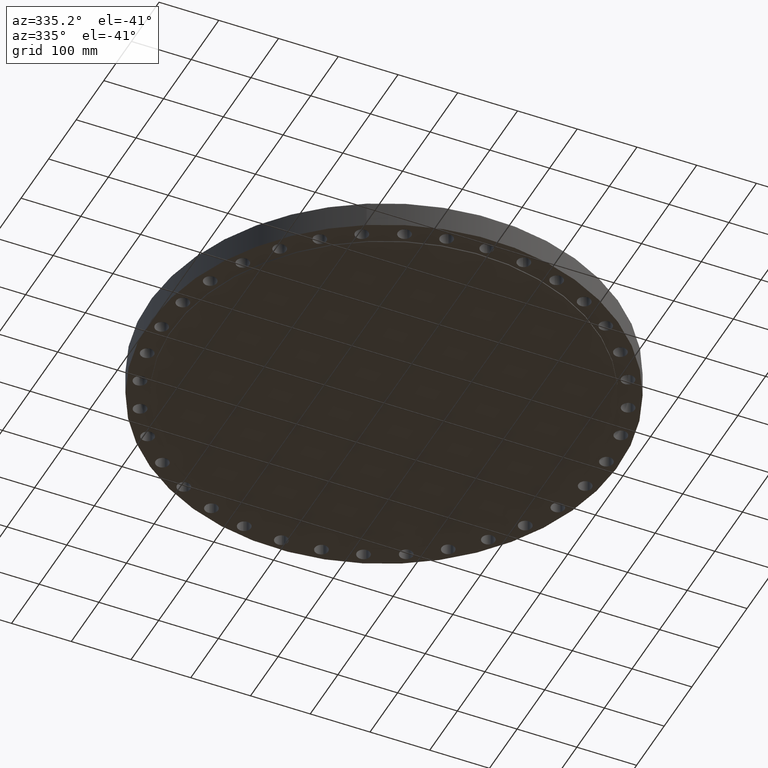
[diagram: clean part render]
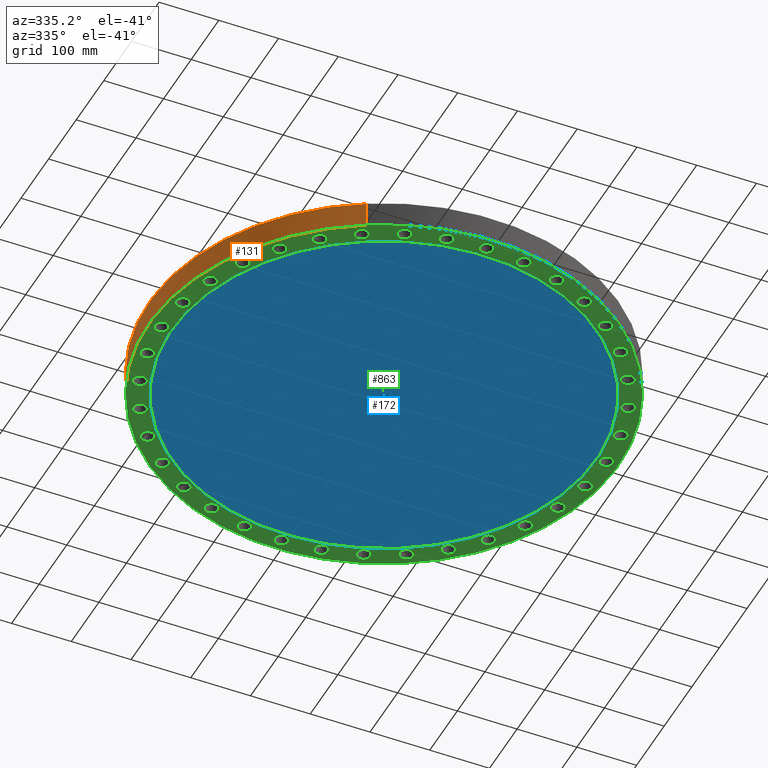
[diagram: same view with three faces highlighted in distinct colors, each labeled with its STEP entity id]
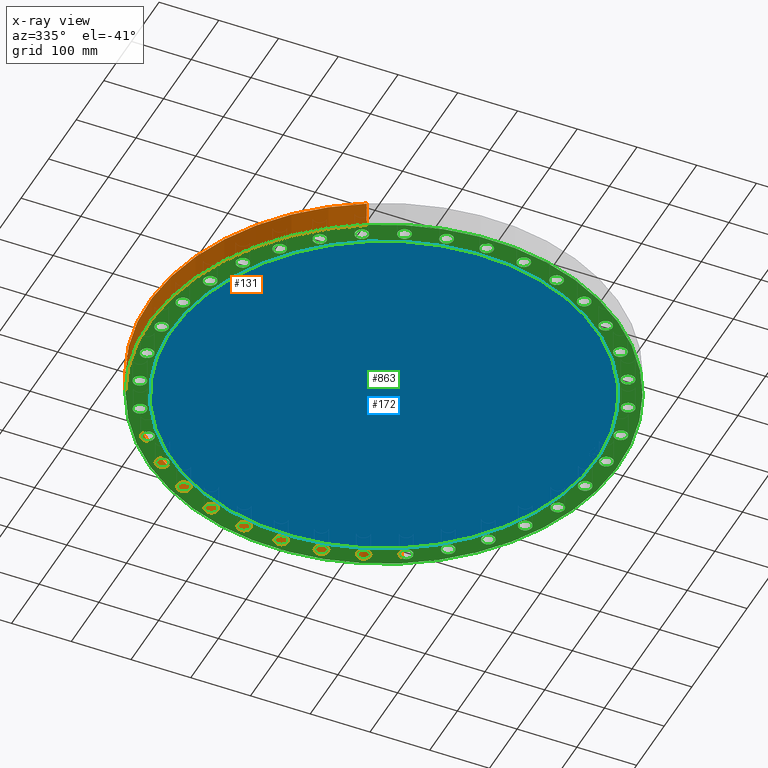
[diagram: x-ray of the same camera — body ghosted, the three highlighted faces saturated]
A machine part, auxiliary view with three faces highlighted in distinct colors.
The next image is the same camera in x-ray (body ghosted, the three faces saturated) — at least one of them is partly hidden behind the body in this view.
Their STEP definitions:

[orange] entity #131 — the highlighted cylindrical surface (partial cylindrical patch) has radius 392.938 mm, axis along (0, 0, -1).
#95=AXIS2_PLACEMENT_3D('Cylinder Axis2P3D',#92,#93,#94) ;
#99=AXIS2_PLACEMENT_3D('Circle Axis2P3D',#97,#98,$) ;
#115=AXIS2_PLACEMENT_3D('Circle Axis2P3D',#113,#114,$) ;
#92=CARTESIAN_POINT('Axis2P3D Location',(0.,0.,0.813500000003)) ;
#97=CARTESIAN_POINT('Axis2P3D Location',(0.,0.,1.81831802458E-015)) ;
#101=CARTESIAN_POINT('Vertex',(-7.41671308224,-13.5762022325,1.67844740731E-015)) ;
#103=CARTESIAN_POINT('Vertex',(7.41671308224,13.5762022325,1.67844740731E-015)) ;
#106=CARTESIAN_POINT('Line Origine',(-7.41671308224,-13.5762022325,0.845000000003)) ;
#110=CARTESIAN_POINT('Vertex',(-7.41671308224,-13.5762022325,1.69000000001)) ;
#113=CARTESIAN_POINT('Axis2P3D Location',(0.,0.,1.69000000001)) ;
#117=CARTESIAN_POINT('Vertex',(7.41671308224,13.5762022325,1.69000000001)) ;
#120=CARTESIAN_POINT('Line Origine',(7.41671308224,13.5762022325,0.845000000003)) ;
#93=DIRECTION('Axis2P3D Direction',(0.,0.,-0.0393700787402)) ;
#94=DIRECTION('Axis2P3D XDirection',(0.0188750212049,0.0345504945626,0.)) ;
#98=DIRECTION('Axis2P3D Direction',(0.,0.,-0.0393700787402)) ;
#107=DIRECTION('Vector Direction',(0.,0.,-0.0393700787402)) ;
#114=DIRECTION('Axis2P3D Direction',(0.,0.,-0.0393700787402)) ;
#121=DIRECTION('Vector Direction',(0.,0.,-0.0393700787402)) ;
#108=VECTOR('Line Direction',#107,0.0393700787402) ;
#122=VECTOR('Line Direction',#121,0.0393700787402) ;
#126=ORIENTED_EDGE('',*,*,#105,.F.) ;
#127=ORIENTED_EDGE('',*,*,#112,.T.) ;
#128=ORIENTED_EDGE('',*,*,#119,.T.) ;
#129=ORIENTED_EDGE('',*,*,#124,.F.) ;
#131=ADVANCED_FACE('PartBody',(#130),#96,.T.) ;
#100=CIRCLE('generated circle',#99,15.4700000001) ;
#116=CIRCLE('generated circle',#115,15.4700000001) ;
#96=CYLINDRICAL_SURFACE('generated cylinder',#95,15.4700000001) ;
#105=EDGE_CURVE('',#102,#104,#100,.T.) ;
#112=EDGE_CURVE('',#102,#111,#109,.F.) ;
#119=EDGE_CURVE('',#111,#118,#116,.T.) ;
#124=EDGE_CURVE('',#104,#118,#123,.F.) ;
#125=EDGE_LOOP('',(#126,#127,#128,#129)) ;
#130=FACE_OUTER_BOUND('',#125,.T.) ;
#109=LINE('Line',#106,#108) ;
#123=LINE('Line',#120,#122) ;
#102=VERTEX_POINT('',#101) ;
#104=VERTEX_POINT('',#103) ;
#111=VERTEX_POINT('',#110) ;
#118=VERTEX_POINT('',#117) ;

[blue] entity #172 — the highlighted planar face has unit normal (0, 0, -1).
#152=AXIS2_PLACEMENT_3D('Plane Axis2P3D',#149,#150,#151) ;
#156=AXIS2_PLACEMENT_3D('Circle Axis2P3D',#154,#155,$) ;
#165=AXIS2_PLACEMENT_3D('Circle Axis2P3D',#163,#164,$) ;
#149=CARTESIAN_POINT('Axis2P3D Location',(0.,0.,-0.0630000000003)) ;
#154=CARTESIAN_POINT('Axis2P3D Location',(0.,0.,-0.0630000000003)) ;
#158=CARTESIAN_POINT('Vertex',(6.71195754049,12.2861558665,-0.0630000000003)) ;
#160=CARTESIAN_POINT('Vertex',(-6.71195754049,-12.2861558665,-0.0630000000003)) ;
#163=CARTESIAN_POINT('Axis2P3D Location',(0.,0.,-0.0630000000003)) ;
#150=DIRECTION('Axis2P3D Direction',(0.,0.,-0.0393700787402)) ;
#151=DIRECTION('Axis2P3D XDirection',(0.0393700787402,0.,0.)) ;
#155=DIRECTION('Axis2P3D Direction',(0.,0.,-0.0393700787402)) ;
#164=DIRECTION('Axis2P3D Direction',(0.,0.,-0.0393700787402)) ;
#169=ORIENTED_EDGE('',*,*,#162,.T.) ;
#170=ORIENTED_EDGE('',*,*,#167,.T.) ;
#172=ADVANCED_FACE('PartBody',(#171),#153,.T.) ;
#157=CIRCLE('generated circle',#156,14.0000000001) ;
#166=CIRCLE('generated circle',#165,14.0000000001) ;
#162=EDGE_CURVE('',#159,#161,#157,.T.) ;
#167=EDGE_CURVE('',#161,#159,#166,.T.) ;
#168=EDGE_LOOP('',(#169,#170)) ;
#171=FACE_OUTER_BOUND('',#168,.T.) ;
#153=PLANE('',#152) ;
#159=VERTEX_POINT('',#158) ;
#161=VERTEX_POINT('',#160) ;

[green] entity #863 — the highlighted planar face has unit normal (0, 0, -1).
#51=AXIS2_PLACEMENT_3D('Circle Axis2P3D',#49,#50,$) ;
#77=AXIS2_PLACEMENT_3D('Circle Axis2P3D',#75,#76,$) ;
#99=AXIS2_PLACEMENT_3D('Circle Axis2P3D',#97,#98,$) ;
#134=AXIS2_PLACEMENT_3D('Circle Axis2P3D',#132,#133,$) ;
#187=AXIS2_PLACEMENT_3D('Circle Axis2P3D',#185,#186,$) ;
#206=AXIS2_PLACEMENT_3D('Circle Axis2P3D',#204,#205,$) ;
#219=AXIS2_PLACEMENT_3D('Plane Axis2P3D',#216,#217,#218) ;
#235=AXIS2_PLACEMENT_3D('Circle Axis2P3D',#233,#234,$) ;
#244=AXIS2_PLACEMENT_3D('Circle Axis2P3D',#242,#243,$) ;
#253=AXIS2_PLACEMENT_3D('Circle Axis2P3D',#251,#252,$) ;
#262=AXIS2_PLACEMENT_3D('Circle Axis2P3D',#260,#261,$) ;
#271=AXIS2_PLACEMENT_3D('Circle Axis2P3D',#269,#270,$) ;
#280=AXIS2_PLACEMENT_3D('Circle Axis2P3D',#278,#279,$) ;
#289=AXIS2_PLACEMENT_3D('Circle Axis2P3D',#287,#288,$) ;
#298=AXIS2_PLACEMENT_3D('Circle Axis2P3D',#296,#297,$) ;
#307=AXIS2_PLACEMENT_3D('Circle Axis2P3D',#305,#306,$) ;
#316=AXIS2_PLACEMENT_3D('Circle Axis2P3D',#314,#315,$) ;
#325=AXIS2_PLACEMENT_3D('Circle Axis2P3D',#323,#324,$) ;
#334=AXIS2_PLACEMENT_3D('Circle Axis2P3D',#332,#333,$) ;
#343=AXIS2_PLACEMENT_3D('Circle Axis2P3D',#341,#342,$) ;
#352=AXIS2_PLACEMENT_3D('Circle Axis2P3D',#350,#351,$) ;
#361=AXIS2_PLACEMENT_3D('Circle Axis2P3D',#359,#360,$) ;
#370=AXIS2_PLACEMENT_3D('Circle Axis2P3D',#368,#369,$) ;
#379=AXIS2_PLACEMENT_3D('Circle Axis2P3D',#377,#378,$) ;
#388=AXIS2_PLACEMENT_3D('Circle Axis2P3D',#386,#387,$) ;
#397=AXIS2_PLACEMENT_3D('Circle Axis2P3D',#395,#396,$) ;
#406=AXIS2_PLACEMENT_3D('Circle Axis2P3D',#404,#405,$) ;
#415=AXIS2_PLACEMENT_3D('Circle Axis2P3D',#413,#414,$) ;
#424=AXIS2_PLACEMENT_3D('Circle Axis2P3D',#422,#423,$) ;
#433=AXIS2_PLACEMENT_3D('Circle Axis2P3D',#431,#432,$) ;
#442=AXIS2_PLACEMENT_3D('Circle Axis2P3D',#440,#441,$) ;
#451=AXIS2_PLACEMENT_3D('Circle Axis2P3D',#449,#450,$) ;
#460=AXIS2_PLACEMENT_3D('Circle Axis2P3D',#458,#459,$) ;
#469=AXIS2_PLACEMENT_3D('Circle Axis2P3D',#467,#468,$) ;
#478=AXIS2_PLACEMENT_3D('Circle Axis2P3D',#476,#477,$) ;
#487=AXIS2_PLACEMENT_3D('Circle Axis2P3D',#485,#486,$) ;
#496=AXIS2_PLACEMENT_3D('Circle Axis2P3D',#494,#495,$) ;
#505=AXIS2_PLACEMENT_3D('Circle Axis2P3D',#503,#504,$) ;
#514=AXIS2_PLACEMENT_3D('Circle Axis2P3D',#512,#513,$) ;
#523=AXIS2_PLACEMENT_3D('Circle Axis2P3D',#521,#522,$) ;
#532=AXIS2_PLACEMENT_3D('Circle Axis2P3D',#530,#531,$) ;
#541=AXIS2_PLACEMENT_3D('Circle Axis2P3D',#539,#540,$) ;
#550=AXIS2_PLACEMENT_3D('Circle Axis2P3D',#548,#549,$) ;
#559=AXIS2_PLACEMENT_3D('Circle Axis2P3D',#557,#558,$) ;
#568=AXIS2_PLACEMENT_3D('Circle Axis2P3D',#566,#567,$) ;
#577=AXIS2_PLACEMENT_3D('Circle Axis2P3D',#575,#576,$) ;
#586=AXIS2_PLACEMENT_3D('Circle Axis2P3D',#584,#585,$) ;
#595=AXIS2_PLACEMENT_3D('Circle Axis2P3D',#593,#594,$) ;
#604=AXIS2_PLACEMENT_3D('Circle Axis2P3D',#602,#603,$) ;
#613=AXIS2_PLACEMENT_3D('Circle Axis2P3D',#611,#612,$) ;
#622=AXIS2_PLACEMENT_3D('Circle Axis2P3D',#620,#621,$) ;
#631=AXIS2_PLACEMENT_3D('Circle Axis2P3D',#629,#630,$) ;
#640=AXIS2_PLACEMENT_3D('Circle Axis2P3D',#638,#639,$) ;
#649=AXIS2_PLACEMENT_3D('Circle Axis2P3D',#647,#648,$) ;
#658=AXIS2_PLACEMENT_3D('Circle Axis2P3D',#656,#657,$) ;
#667=AXIS2_PLACEMENT_3D('Circle Axis2P3D',#665,#666,$) ;
#676=AXIS2_PLACEMENT_3D('Circle Axis2P3D',#674,#675,$) ;
#685=AXIS2_PLACEMENT_3D('Circle Axis2P3D',#683,#684,$) ;
#694=AXIS2_PLACEMENT_3D('Circle Axis2P3D',#692,#693,$) ;
#703=AXIS2_PLACEMENT_3D('Circle Axis2P3D',#701,#702,$) ;
#712=AXIS2_PLACEMENT_3D('Circle Axis2P3D',#710,#711,$) ;
#721=AXIS2_PLACEMENT_3D('Circle Axis2P3D',#719,#720,$) ;
#730=AXIS2_PLACEMENT_3D('Circle Axis2P3D',#728,#729,$) ;
#739=AXIS2_PLACEMENT_3D('Circle Axis2P3D',#737,#738,$) ;
#748=AXIS2_PLACEMENT_3D('Circle Axis2P3D',#746,#747,$) ;
#757=AXIS2_PLACEMENT_3D('Circle Axis2P3D',#755,#756,$) ;
#766=AXIS2_PLACEMENT_3D('Circle Axis2P3D',#764,#765,$) ;
#775=AXIS2_PLACEMENT_3D('Circle Axis2P3D',#773,#774,$) ;
#784=AXIS2_PLACEMENT_3D('Circle Axis2P3D',#782,#783,$) ;
#793=AXIS2_PLACEMENT_3D('Circle Axis2P3D',#791,#792,$) ;
#802=AXIS2_PLACEMENT_3D('Circle Axis2P3D',#800,#801,$) ;
#811=AXIS2_PLACEMENT_3D('Circle Axis2P3D',#809,#810,$) ;
#820=AXIS2_PLACEMENT_3D('Circle Axis2P3D',#818,#819,$) ;
#829=AXIS2_PLACEMENT_3D('Circle Axis2P3D',#827,#828,$) ;
#838=AXIS2_PLACEMENT_3D('Circle Axis2P3D',#836,#837,$) ;
#847=AXIS2_PLACEMENT_3D('Circle Axis2P3D',#845,#846,$) ;
#856=AXIS2_PLACEMENT_3D('Circle Axis2P3D',#854,#855,$) ;
#44=CARTESIAN_POINT('Vertex',(14.2688636728,0.210947236987,0.)) ;
#49=CARTESIAN_POINT('Axis2P3D Location',(14.6550000001,0.,0.)) ;
#53=CARTESIAN_POINT('Vertex',(15.0411363273,-0.210947236987,0.)) ;
#75=CARTESIAN_POINT('Axis2P3D Location',(14.6550000001,0.,0.)) ;
#97=CARTESIAN_POINT('Axis2P3D Location',(0.,0.,1.81831802458E-015)) ;
#101=CARTESIAN_POINT('Vertex',(-7.41671308224,-13.5762022325,1.67844740731E-015)) ;
#103=CARTESIAN_POINT('Vertex',(7.41671308224,13.5762022325,1.67844740731E-015)) ;
#132=CARTESIAN_POINT('Axis2P3D Location',(0.,0.,1.81831802458E-015)) ;
#182=CARTESIAN_POINT('Vertex',(-6.71195754049,-12.2861558665,1.67844740731E-015)) ;
#185=CARTESIAN_POINT('Axis2P3D Location',(0.,0.,1.67844740731E-015)) ;
#189=CARTESIAN_POINT('Vertex',(6.71195754049,12.2861558665,1.67844740731E-015)) ;
#204=CARTESIAN_POINT('Axis2P3D Location',(0.,0.,1.67844740731E-015)) ;
#216=CARTESIAN_POINT('Axis2P3D Location',(0.,14.0000000001,0.)) ;
#233=CARTESIAN_POINT('Axis2P3D Location',(14.4323576205,-2.54481404372,0.)) ;
#237=CARTESIAN_POINT('Vertex',(14.088718175,-2.2700196997,0.)) ;
#239=CARTESIAN_POINT('Vertex',(14.7759970659,-2.81960838774,-1.67844740731E-015)) ;
#242=CARTESIAN_POINT('Axis2P3D Location',(14.4323576205,-2.54481404372,0.)) ;
#251=CARTESIAN_POINT('Axis2P3D Location',(13.7711953577,-5.01230520046,0.)) ;
#255=CARTESIAN_POINT('Vertex',(13.4804941046,-4.6820132365,0.)) ;
#257=CARTESIAN_POINT('Vertex',(14.0618966108,-5.34259716441,0.)) ;
#260=CARTESIAN_POINT('Axis2P3D Location',(13.7711953577,-5.01230520046,0.)) ;
#269=CARTESIAN_POINT('Axis2P3D Location',(12.6916022925,-7.32750000003,0.)) ;
#273=CARTESIAN_POINT('Vertex',(12.4626720423,-6.95174617032,0.)) ;
#275=CARTESIAN_POINT('Vertex',(12.9205325427,-7.70325382973,0.)) ;
#278=CARTESIAN_POINT('Axis2P3D Location',(12.6916022925,-7.32750000003,0.)) ;
#287=CARTESIAN_POINT('Axis2P3D Location',(11.226381314,-9.42005241999,0.)) ;
#291=CARTESIAN_POINT('Vertex',(11.0661779964,-9.01025381451,0.)) ;
#293=CARTESIAN_POINT('Vertex',(11.3865846315,-9.82985102547,-1.67844740731E-015)) ;
#296=CARTESIAN_POINT('Axis2P3D Location',(11.226381314,-9.42005241999,0.)) ;
#305=CARTESIAN_POINT('Axis2P3D Location',(9.42005241999,-11.226381314,0.)) ;
#309=CARTESIAN_POINT('Vertex',(9.33344373188,-10.794989456,0.)) ;
#311=CARTESIAN_POINT('Vertex',(9.5066611081,-11.6577731719,0.)) ;
#314=CARTESIAN_POINT('Axis2P3D Location',(9.42005241999,-11.226381314,0.)) ;
#323=CARTESIAN_POINT('Axis2P3D Location',(7.32750000003,-12.6916022925,0.)) ;
#327=CARTESIAN_POINT('Vertex',(7.3171175025,-12.2517248053,0.)) ;
#329=CARTESIAN_POINT('Vertex',(7.33788249756,-13.1314797797,0.)) ;
#332=CARTESIAN_POINT('Axis2P3D Location',(7.32750000003,-12.6916022925,0.)) ;
#341=CARTESIAN_POINT('Axis2P3D Location',(5.01230520046,-13.7711953577,0.)) ;
#345=CARTESIAN_POINT('Vertex',(5.07846436045,-13.3361976961,0.)) ;
#347=CARTESIAN_POINT('Vertex',(4.94614604047,-14.2061930192,-1.67844740731E-015)) ;
#350=CARTESIAN_POINT('Axis2P3D Location',(5.01230520046,-13.7711953577,0.)) ;
#359=CARTESIAN_POINT('Axis2P3D Location',(2.54481404372,-14.4323576205,0.)) ;
#363=CARTESIAN_POINT('Vertex',(2.68550464862,-14.0154569684,0.)) ;
#365=CARTESIAN_POINT('Vertex',(2.40412343881,-14.8492582725,-1.67844740731E-015)) ;
#368=CARTESIAN_POINT('Axis2P3D Location',(2.54481404372,-14.4323576205,0.)) ;
#377=CARTESIAN_POINT('Axis2P3D Location',(-1.15393259252E-015,-14.6550000001,0.)) ;
#381=CARTESIAN_POINT('Vertex',(0.210947236987,-14.2688636728,0.)) ;
#383=CARTESIAN_POINT('Vertex',(-0.210947236987,-15.0411363273,0.)) ;
#386=CARTESIAN_POINT('Axis2P3D Location',(-3.25199185166E-015,-14.6550000001,0.)) ;
#395=CARTESIAN_POINT('Axis2P3D Location',(-2.54481404372,-14.4323576205,0.)) ;
#399=CARTESIAN_POINT('Vertex',(-2.2700196997,-14.088718175,0.)) ;
#401=CARTESIAN_POINT('Vertex',(-2.81960838774,-14.7759970659,-1.67844740731E-015)) ;
#404=CARTESIAN_POINT('Axis2P3D Location',(-2.54481404372,-14.4323576205,0.)) ;
#413=CARTESIAN_POINT('Axis2P3D Location',(-5.01230520046,-13.7711953577,0.)) ;
#417=CARTESIAN_POINT('Vertex',(-4.6820132365,-13.4804941046,0.)) ;
#419=CARTESIAN_POINT('Vertex',(-5.34259716441,-14.0618966108,0.)) ;
#422=CARTESIAN_POINT('Axis2P3D Location',(-5.01230520046,-13.7711953577,0.)) ;
#431=CARTESIAN_POINT('Axis2P3D Location',(-7.32750000003,-12.6916022925,0.)) ;
#435=CARTESIAN_POINT('Vertex',(-6.95174617032,-12.4626720423,0.)) ;
#437=CARTESIAN_POINT('Vertex',(-7.70325382973,-12.9205325427,-1.67844740731E-015)) ;
#440=CARTESIAN_POINT('Axis2P3D Location',(-7.32750000003,-12.6916022925,0.)) ;
#449=CARTESIAN_POINT('Axis2P3D Location',(-9.42005241999,-11.226381314,0.)) ;
#453=CARTESIAN_POINT('Vertex',(-9.01025381451,-11.0661779964,0.)) ;
#455=CARTESIAN_POINT('Vertex',(-9.82985102547,-11.3865846315,0.)) ;
#458=CARTESIAN_POINT('Axis2P3D Location',(-9.42005241999,-11.226381314,0.)) ;
#467=CARTESIAN_POINT('Axis2P3D Location',(-11.226381314,-9.42005241999,0.)) ;
#471=CARTESIAN_POINT('Vertex',(-10.794989456,-9.33344373188,0.)) ;
#473=CARTESIAN_POINT('Vertex',(-11.6577731719,-9.5066611081,0.)) ;
#476=CARTESIAN_POINT('Axis2P3D Location',(-11.226381314,-9.42005241999,0.)) ;
#485=CARTESIAN_POINT('Axis2P3D Location',(-12.6916022925,-7.32750000003,0.)) ;
#489=CARTESIAN_POINT('Vertex',(-12.2517248053,-7.3171175025,0.)) ;
#491=CARTESIAN_POINT('Vertex',(-13.1314797797,-7.33788249756,0.)) ;
#494=CARTESIAN_POINT('Axis2P3D Location',(-12.6916022925,-7.32750000003,0.)) ;
#503=CARTESIAN_POINT('Axis2P3D Location',(-13.7711953577,-5.01230520046,0.)) ;
#507=CARTESIAN_POINT('Vertex',(-13.3361976961,-5.07846436045,0.)) ;
#509=CARTESIAN_POINT('Vertex',(-14.2061930192,-4.94614604047,-1.67844740731E-015)) ;
#512=CARTESIAN_POINT('Axis2P3D Location',(-13.7711953577,-5.01230520046,0.)) ;
#521=CARTESIAN_POINT('Axis2P3D Location',(-14.4323576205,-2.54481404372,0.)) ;
#525=CARTESIAN_POINT('Vertex',(-14.0154569684,-2.68550464862,0.)) ;
#527=CARTESIAN_POINT('Vertex',(-14.8492582725,-2.40412343881,-1.67844740731E-015)) ;
#530=CARTESIAN_POINT('Axis2P3D Location',(-14.4323576205,-2.54481404372,0.)) ;
#539=CARTESIAN_POINT('Axis2P3D Location',(-14.6550000001,-4.47585975282E-015,0.)) ;
#543=CARTESIAN_POINT('Vertex',(-14.2688636728,-0.210947236987,0.)) ;
#545=CARTESIAN_POINT('Vertex',(-15.0411363273,0.210947236987,0.)) ;
#548=CARTESIAN_POINT('Axis2P3D Location',(-14.6550000001,0.,0.)) ;
#557=CARTESIAN_POINT('Axis2P3D Location',(-14.4323576205,2.54481404372,0.)) ;
#561=CARTESIAN_POINT('Vertex',(-14.088718175,2.2700196997,0.)) ;
#563=CARTESIAN_POINT('Vertex',(-14.7759970659,2.81960838774,0.)) ;
#566=CARTESIAN_POINT('Axis2P3D Location',(-14.4323576205,2.54481404372,0.)) ;
#575=CARTESIAN_POINT('Axis2P3D Location',(-13.7711953577,5.01230520046,0.)) ;
#579=CARTESIAN_POINT('Vertex',(-13.4804941046,4.6820132365,0.)) ;
#581=CARTESIAN_POINT('Vertex',(-14.0618966108,5.34259716441,0.)) ;
#584=CARTESIAN_POINT('Axis2P3D Location',(-13.7711953577,5.01230520046,0.)) ;
#593=CARTESIAN_POINT('Axis2P3D Location',(-12.6916022925,7.32750000003,0.)) ;
#597=CARTESIAN_POINT('Vertex',(-12.4626720423,6.95174617032,0.)) ;
#599=CARTESIAN_POINT('Vertex',(-12.9205325427,7.70325382973,0.)) ;
#602=CARTESIAN_POINT('Axis2P3D Location',(-12.6916022925,7.32750000003,0.)) ;
#611=CARTESIAN_POINT('Axis2P3D Location',(-11.226381314,9.42005241999,0.)) ;
#615=CARTESIAN_POINT('Vertex',(-11.0661779964,9.01025381451,0.)) ;
#617=CARTESIAN_POINT('Vertex',(-11.3865846315,9.82985102547,-1.67844740731E-015)) ;
#620=CARTESIAN_POINT('Axis2P3D Location',(-11.226381314,9.42005241999,0.)) ;
#629=CARTESIAN_POINT('Axis2P3D Location',(-9.42005241999,11.226381314,0.)) ;
#633=CARTESIAN_POINT('Vertex',(-9.33344373188,10.794989456,0.)) ;
#635=CARTESIAN_POINT('Vertex',(-9.5066611081,11.6577731719,0.)) ;
#638=CARTESIAN_POINT('Axis2P3D Location',(-9.42005241999,11.226381314,0.)) ;
#647=CARTESIAN_POINT('Axis2P3D Location',(-7.32750000003,12.6916022925,0.)) ;
#651=CARTESIAN_POINT('Vertex',(-7.3171175025,12.2517248053,0.)) ;
#653=CARTESIAN_POINT('Vertex',(-7.33788249756,13.1314797797,0.)) ;
#656=CARTESIAN_POINT('Axis2P3D Location',(-7.32750000003,12.6916022925,0.)) ;
#665=CARTESIAN_POINT('Axis2P3D Location',(-5.01230520046,13.7711953577,0.)) ;
#669=CARTESIAN_POINT('Vertex',(-5.07846436045,13.3361976961,0.)) ;
#671=CARTESIAN_POINT('Vertex',(-4.94614604047,14.2061930192,-1.67844740731E-015)) ;
#674=CARTESIAN_POINT('Axis2P3D Location',(-5.01230520046,13.7711953577,0.)) ;
#683=CARTESIAN_POINT('Axis2P3D Location',(-2.54481404372,14.4323576205,0.)) ;
#687=CARTESIAN_POINT('Vertex',(-2.68550464862,14.0154569684,0.)) ;
#689=CARTESIAN_POINT('Vertex',(-2.40412343881,14.8492582725,-1.67844740731E-015)) ;
#692=CARTESIAN_POINT('Axis2P3D Location',(-2.54481404372,14.4323576205,0.)) ;
#701=CARTESIAN_POINT('Axis2P3D Location',(-2.86734765415E-015,14.6550000001,0.)) ;
#705=CARTESIAN_POINT('Vertex',(-0.210947236987,14.2688636728,0.)) ;
#707=CARTESIAN_POINT('Vertex',(0.210947236987,15.0411363273,0.)) ;
#710=CARTESIAN_POINT('Axis2P3D Location',(-1.53857679003E-015,14.6550000001,0.)) ;
#719=CARTESIAN_POINT('Axis2P3D Location',(2.54481404372,14.4323576205,0.)) ;
#723=CARTESIAN_POINT('Vertex',(2.2700196997,14.088718175,0.)) ;
#725=CARTESIAN_POINT('Vertex',(2.81960838774,14.7759970659,0.)) ;
#728=CARTESIAN_POINT('Axis2P3D Location',(2.54481404372,14.4323576205,0.)) ;
#737=CARTESIAN_POINT('Axis2P3D Location',(5.01230520046,13.7711953577,0.)) ;
#741=CARTESIAN_POINT('Vertex',(4.6820132365,13.4804941046,0.)) ;
#743=CARTESIAN_POINT('Vertex',(5.34259716441,14.0618966108,0.)) ;
#746=CARTESIAN_POINT('Axis2P3D Location',(5.01230520046,13.7711953577,0.)) ;
#755=CARTESIAN_POINT('Axis2P3D Location',(7.32750000003,12.6916022925,0.)) ;
#759=CARTESIAN_POINT('Vertex',(6.95174617032,12.4626720423,0.)) ;
#761=CARTESIAN_POINT('Vertex',(7.70325382973,12.9205325427,0.)) ;
#764=CARTESIAN_POINT('Axis2P3D Location',(7.32750000003,12.6916022925,0.)) ;
#773=CARTESIAN_POINT('Axis2P3D Location',(9.42005241999,11.226381314,0.)) ;
#777=CARTESIAN_POINT('Vertex',(9.01025381451,11.0661779964,0.)) ;
#779=CARTESIAN_POINT('Vertex',(9.82985102547,11.3865846315,0.)) ;
#782=CARTESIAN_POINT('Axis2P3D Location',(9.42005241999,11.226381314,0.)) ;
#791=CARTESIAN_POINT('Axis2P3D Location',(11.226381314,9.42005241999,0.)) ;
#795=CARTESIAN_POINT('Vertex',(10.794989456,9.33344373188,0.)) ;
#797=CARTESIAN_POINT('Vertex',(11.6577731719,9.5066611081,0.)) ;
#800=CARTESIAN_POINT('Axis2P3D Location',(11.226381314,9.42005241999,0.)) ;
#809=CARTESIAN_POINT('Axis2P3D Location',(12.6916022925,7.32750000003,0.)) ;
#813=CARTESIAN_POINT('Vertex',(12.2517248053,7.3171175025,0.)) ;
#815=CARTESIAN_POINT('Vertex',(13.1314797797,7.33788249756,0.)) ;
#818=CARTESIAN_POINT('Axis2P3D Location',(12.6916022925,7.32750000003,0.)) ;
#827=CARTESIAN_POINT('Axis2P3D Location',(13.7711953577,5.01230520046,0.)) ;
#831=CARTESIAN_POINT('Vertex',(13.3361976961,5.07846436045,0.)) ;
#833=CARTESIAN_POINT('Vertex',(14.2061930192,4.94614604047,0.)) ;
#836=CARTESIAN_POINT('Axis2P3D Location',(13.7711953577,5.01230520046,0.)) ;
#845=CARTESIAN_POINT('Axis2P3D Location',(14.4323576205,2.54481404372,0.)) ;
#849=CARTESIAN_POINT('Vertex',(14.0154569684,2.68550464862,0.)) ;
#851=CARTESIAN_POINT('Vertex',(14.8492582725,2.40412343881,-1.67844740731E-015)) ;
#854=CARTESIAN_POINT('Axis2P3D Location',(14.4323576205,2.54481404372,0.)) ;
#50=DIRECTION('Axis2P3D Direction',(0.,-0.,-0.0393700787402)) ;
#76=DIRECTION('Axis2P3D Direction',(0.,-0.,-0.0393700787402)) ;
#98=DIRECTION('Axis2P3D Direction',(0.,0.,-0.0393700787402)) ;
#133=DIRECTION('Axis2P3D Direction',(0.,0.,-0.0393700787402)) ;
#186=DIRECTION('Axis2P3D Direction',(0.,0.,-0.0393700787402)) ;
#205=DIRECTION('Axis2P3D Direction',(0.,0.,-0.0393700787402)) ;
#217=DIRECTION('Axis2P3D Direction',(0.,0.,-0.0393700787402)) ;
#218=DIRECTION('Axis2P3D XDirection',(0.0393700787402,0.,0.)) ;
#234=DIRECTION('Axis2P3D Direction',(0.,0.,-0.0393700787402)) ;
#243=DIRECTION('Axis2P3D Direction',(0.,0.,-0.0393700787402)) ;
#252=DIRECTION('Axis2P3D Direction',(0.,0.,-0.0393700787402)) ;
#261=DIRECTION('Axis2P3D Direction',(0.,0.,-0.0393700787402)) ;
#270=DIRECTION('Axis2P3D Direction',(0.,0.,-0.0393700787402)) ;
#279=DIRECTION('Axis2P3D Direction',(0.,0.,-0.0393700787402)) ;
#288=DIRECTION('Axis2P3D Direction',(0.,0.,-0.0393700787402)) ;
#297=DIRECTION('Axis2P3D Direction',(0.,0.,-0.0393700787402)) ;
#306=DIRECTION('Axis2P3D Direction',(0.,0.,-0.0393700787402)) ;
#315=DIRECTION('Axis2P3D Direction',(0.,0.,-0.0393700787402)) ;
#324=DIRECTION('Axis2P3D Direction',(0.,0.,-0.0393700787402)) ;
#333=DIRECTION('Axis2P3D Direction',(0.,0.,-0.0393700787402)) ;
#342=DIRECTION('Axis2P3D Direction',(0.,0.,-0.0393700787402)) ;
#351=DIRECTION('Axis2P3D Direction',(0.,0.,-0.0393700787402)) ;
#360=DIRECTION('Axis2P3D Direction',(0.,0.,-0.0393700787402)) ;
#369=DIRECTION('Axis2P3D Direction',(0.,0.,-0.0393700787402)) ;
#378=DIRECTION('Axis2P3D Direction',(0.,0.,-0.0393700787402)) ;
#387=DIRECTION('Axis2P3D Direction',(0.,0.,-0.0393700787402)) ;
#396=DIRECTION('Axis2P3D Direction',(0.,0.,-0.0393700787402)) ;
#405=DIRECTION('Axis2P3D Direction',(0.,0.,-0.0393700787402)) ;
#414=DIRECTION('Axis2P3D Direction',(0.,0.,-0.0393700787402)) ;
#423=DIRECTION('Axis2P3D Direction',(0.,0.,-0.0393700787402)) ;
#432=DIRECTION('Axis2P3D Direction',(0.,0.,-0.0393700787402)) ;
#441=DIRECTION('Axis2P3D Direction',(0.,0.,-0.0393700787402)) ;
#450=DIRECTION('Axis2P3D Direction',(0.,0.,-0.0393700787402)) ;
#459=DIRECTION('Axis2P3D Direction',(0.,0.,-0.0393700787402)) ;
#468=DIRECTION('Axis2P3D Direction',(0.,0.,-0.0393700787402)) ;
#477=DIRECTION('Axis2P3D Direction',(0.,0.,-0.0393700787402)) ;
#486=DIRECTION('Axis2P3D Direction',(0.,0.,-0.0393700787402)) ;
#495=DIRECTION('Axis2P3D Direction',(0.,0.,-0.0393700787402)) ;
#504=DIRECTION('Axis2P3D Direction',(0.,0.,-0.0393700787402)) ;
#513=DIRECTION('Axis2P3D Direction',(0.,0.,-0.0393700787402)) ;
#522=DIRECTION('Axis2P3D Direction',(0.,0.,-0.0393700787402)) ;
#531=DIRECTION('Axis2P3D Direction',(0.,0.,-0.0393700787402)) ;
#540=DIRECTION('Axis2P3D Direction',(0.,0.,-0.0393700787402)) ;
#549=DIRECTION('Axis2P3D Direction',(0.,0.,-0.0393700787402)) ;
#558=DIRECTION('Axis2P3D Direction',(0.,0.,-0.0393700787402)) ;
#567=DIRECTION('Axis2P3D Direction',(0.,0.,-0.0393700787402)) ;
#576=DIRECTION('Axis2P3D Direction',(0.,0.,-0.0393700787402)) ;
#585=DIRECTION('Axis2P3D Direction',(0.,0.,-0.0393700787402)) ;
#594=DIRECTION('Axis2P3D Direction',(0.,0.,-0.0393700787402)) ;
#603=DIRECTION('Axis2P3D Direction',(0.,0.,-0.0393700787402)) ;
#612=DIRECTION('Axis2P3D Direction',(0.,0.,-0.0393700787402)) ;
#621=DIRECTION('Axis2P3D Direction',(0.,0.,-0.0393700787402)) ;
#630=DIRECTION('Axis2P3D Direction',(0.,0.,-0.0393700787402)) ;
#639=DIRECTION('Axis2P3D Direction',(0.,0.,-0.0393700787402)) ;
#648=DIRECTION('Axis2P3D Direction',(0.,0.,-0.0393700787402)) ;
#657=DIRECTION('Axis2P3D Direction',(0.,0.,-0.0393700787402)) ;
#666=DIRECTION('Axis2P3D Direction',(0.,0.,-0.0393700787402)) ;
#675=DIRECTION('Axis2P3D Direction',(0.,0.,-0.0393700787402)) ;
#684=DIRECTION('Axis2P3D Direction',(0.,0.,-0.0393700787402)) ;
#693=DIRECTION('Axis2P3D Direction',(0.,0.,-0.0393700787402)) ;
#702=DIRECTION('Axis2P3D Direction',(0.,0.,-0.0393700787402)) ;
#711=DIRECTION('Axis2P3D Direction',(0.,0.,-0.0393700787402)) ;
#720=DIRECTION('Axis2P3D Direction',(0.,0.,-0.0393700787402)) ;
#729=DIRECTION('Axis2P3D Direction',(0.,0.,-0.0393700787402)) ;
#738=DIRECTION('Axis2P3D Direction',(0.,0.,-0.0393700787402)) ;
#747=DIRECTION('Axis2P3D Direction',(0.,0.,-0.0393700787402)) ;
#756=DIRECTION('Axis2P3D Direction',(0.,0.,-0.0393700787402)) ;
#765=DIRECTION('Axis2P3D Direction',(0.,0.,-0.0393700787402)) ;
#774=DIRECTION('Axis2P3D Direction',(0.,0.,-0.0393700787402)) ;
#783=DIRECTION('Axis2P3D Direction',(0.,0.,-0.0393700787402)) ;
#792=DIRECTION('Axis2P3D Direction',(0.,0.,-0.0393700787402)) ;
#801=DIRECTION('Axis2P3D Direction',(0.,0.,-0.0393700787402)) ;
#810=DIRECTION('Axis2P3D Direction',(0.,0.,-0.0393700787402)) ;
#819=DIRECTION('Axis2P3D Direction',(0.,0.,-0.0393700787402)) ;
#828=DIRECTION('Axis2P3D Direction',(0.,0.,-0.0393700787402)) ;
#837=DIRECTION('Axis2P3D Direction',(0.,0.,-0.0393700787402)) ;
#846=DIRECTION('Axis2P3D Direction',(0.,0.,-0.0393700787402)) ;
#855=DIRECTION('Axis2P3D Direction',(0.,0.,-0.0393700787402)) ;
#222=ORIENTED_EDGE('',*,*,#105,.T.) ;
#223=ORIENTED_EDGE('',*,*,#136,.T.) ;
#226=ORIENTED_EDGE('',*,*,#79,.F.) ;
#227=ORIENTED_EDGE('',*,*,#55,.F.) ;
#230=ORIENTED_EDGE('',*,*,#208,.F.) ;
#231=ORIENTED_EDGE('',*,*,#191,.F.) ;
#248=ORIENTED_EDGE('',*,*,#241,.F.) ;
#249=ORIENTED_EDGE('',*,*,#246,.F.) ;
#266=ORIENTED_EDGE('',*,*,#259,.F.) ;
#267=ORIENTED_EDGE('',*,*,#264,.F.) ;
#284=ORIENTED_EDGE('',*,*,#277,.F.) ;
#285=ORIENTED_EDGE('',*,*,#282,.F.) ;
#302=ORIENTED_EDGE('',*,*,#295,.F.) ;
#303=ORIENTED_EDGE('',*,*,#300,.F.) ;
#320=ORIENTED_EDGE('',*,*,#313,.F.) ;
#321=ORIENTED_EDGE('',*,*,#318,.F.) ;
#338=ORIENTED_EDGE('',*,*,#331,.F.) ;
#339=ORIENTED_EDGE('',*,*,#336,.F.) ;
#356=ORIENTED_EDGE('',*,*,#349,.F.) ;
#357=ORIENTED_EDGE('',*,*,#354,.F.) ;
#374=ORIENTED_EDGE('',*,*,#367,.F.) ;
#375=ORIENTED_EDGE('',*,*,#372,.F.) ;
#392=ORIENTED_EDGE('',*,*,#385,.F.) ;
#393=ORIENTED_EDGE('',*,*,#390,.F.) ;
#410=ORIENTED_EDGE('',*,*,#403,.F.) ;
#411=ORIENTED_EDGE('',*,*,#408,.F.) ;
#428=ORIENTED_EDGE('',*,*,#421,.F.) ;
#429=ORIENTED_EDGE('',*,*,#426,.F.) ;
#446=ORIENTED_EDGE('',*,*,#439,.F.) ;
#447=ORIENTED_EDGE('',*,*,#444,.F.) ;
#464=ORIENTED_EDGE('',*,*,#457,.F.) ;
#465=ORIENTED_EDGE('',*,*,#462,.F.) ;
#482=ORIENTED_EDGE('',*,*,#475,.F.) ;
#483=ORIENTED_EDGE('',*,*,#480,.F.) ;
#500=ORIENTED_EDGE('',*,*,#493,.F.) ;
#501=ORIENTED_EDGE('',*,*,#498,.F.) ;
#518=ORIENTED_EDGE('',*,*,#511,.F.) ;
#519=ORIENTED_EDGE('',*,*,#516,.F.) ;
#536=ORIENTED_EDGE('',*,*,#529,.F.) ;
#537=ORIENTED_EDGE('',*,*,#534,.F.) ;
#554=ORIENTED_EDGE('',*,*,#547,.F.) ;
#555=ORIENTED_EDGE('',*,*,#552,.F.) ;
#572=ORIENTED_EDGE('',*,*,#565,.F.) ;
#573=ORIENTED_EDGE('',*,*,#570,.F.) ;
#590=ORIENTED_EDGE('',*,*,#583,.F.) ;
#591=ORIENTED_EDGE('',*,*,#588,.F.) ;
#608=ORIENTED_EDGE('',*,*,#601,.F.) ;
#609=ORIENTED_EDGE('',*,*,#606,.F.) ;
#626=ORIENTED_EDGE('',*,*,#619,.F.) ;
#627=ORIENTED_EDGE('',*,*,#624,.F.) ;
#644=ORIENTED_EDGE('',*,*,#637,.F.) ;
#645=ORIENTED_EDGE('',*,*,#642,.F.) ;
#662=ORIENTED_EDGE('',*,*,#655,.F.) ;
#663=ORIENTED_EDGE('',*,*,#660,.F.) ;
#680=ORIENTED_EDGE('',*,*,#673,.F.) ;
#681=ORIENTED_EDGE('',*,*,#678,.F.) ;
#698=ORIENTED_EDGE('',*,*,#691,.F.) ;
#699=ORIENTED_EDGE('',*,*,#696,.F.) ;
#716=ORIENTED_EDGE('',*,*,#709,.F.) ;
#717=ORIENTED_EDGE('',*,*,#714,.F.) ;
#734=ORIENTED_EDGE('',*,*,#727,.F.) ;
#735=ORIENTED_EDGE('',*,*,#732,.F.) ;
#752=ORIENTED_EDGE('',*,*,#745,.F.) ;
#753=ORIENTED_EDGE('',*,*,#750,.F.) ;
#770=ORIENTED_EDGE('',*,*,#763,.F.) ;
#771=ORIENTED_EDGE('',*,*,#768,.F.) ;
#788=ORIENTED_EDGE('',*,*,#781,.F.) ;
#789=ORIENTED_EDGE('',*,*,#786,.F.) ;
#806=ORIENTED_EDGE('',*,*,#799,.F.) ;
#807=ORIENTED_EDGE('',*,*,#804,.F.) ;
#824=ORIENTED_EDGE('',*,*,#817,.F.) ;
#825=ORIENTED_EDGE('',*,*,#822,.F.) ;
#842=ORIENTED_EDGE('',*,*,#835,.F.) ;
#843=ORIENTED_EDGE('',*,*,#840,.F.) ;
#860=ORIENTED_EDGE('',*,*,#853,.F.) ;
#861=ORIENTED_EDGE('',*,*,#858,.F.) ;
#228=FACE_BOUND('',#225,.T.) ;
#232=FACE_BOUND('',#229,.T.) ;
#250=FACE_BOUND('',#247,.T.) ;
#268=FACE_BOUND('',#265,.T.) ;
#286=FACE_BOUND('',#283,.T.) ;
#304=FACE_BOUND('',#301,.T.) ;
#322=FACE_BOUND('',#319,.T.) ;
#340=FACE_BOUND('',#337,.T.) ;
#358=FACE_BOUND('',#355,.T.) ;
#376=FACE_BOUND('',#373,.T.) ;
#394=FACE_BOUND('',#391,.T.) ;
#412=FACE_BOUND('',#409,.T.) ;
#430=FACE_BOUND('',#427,.T.) ;
#448=FACE_BOUND('',#445,.T.) ;
#466=FACE_BOUND('',#463,.T.) ;
#484=FACE_BOUND('',#481,.T.) ;
#502=FACE_BOUND('',#499,.T.) ;
#520=FACE_BOUND('',#517,.T.) ;
#538=FACE_BOUND('',#535,.T.) ;
#556=FACE_BOUND('',#553,.T.) ;
#574=FACE_BOUND('',#571,.T.) ;
#592=FACE_BOUND('',#589,.T.) ;
#610=FACE_BOUND('',#607,.T.) ;
#628=FACE_BOUND('',#625,.T.) ;
#646=FACE_BOUND('',#643,.T.) ;
#664=FACE_BOUND('',#661,.T.) ;
#682=FACE_BOUND('',#679,.T.) ;
#700=FACE_BOUND('',#697,.T.) ;
#718=FACE_BOUND('',#715,.T.) ;
#736=FACE_BOUND('',#733,.T.) ;
#754=FACE_BOUND('',#751,.T.) ;
#772=FACE_BOUND('',#769,.T.) ;
#790=FACE_BOUND('',#787,.T.) ;
#808=FACE_BOUND('',#805,.T.) ;
#826=FACE_BOUND('',#823,.T.) ;
#844=FACE_BOUND('',#841,.T.) ;
#862=FACE_BOUND('',#859,.T.) ;
#863=ADVANCED_FACE('PartBody',(#224,#228,#232,#250,#268,#286,#304,#322,#340,#358,#376,#394,#412,#430,#448,#466,#484,#502,#520,#538,#556,#574,#592,#610,#628,#646,#664,#682,#700,#718,#736,#754,#772,#790,#808,#826,#844,#862),#220,.T.) ;
#52=CIRCLE('generated circle',#51,0.440000000002) ;
#78=CIRCLE('generated circle',#77,0.440000000002) ;
#100=CIRCLE('generated circle',#99,15.4700000001) ;
#135=CIRCLE('generated circle',#134,15.4700000001) ;
#188=CIRCLE('generated circle',#187,14.0000000001) ;
#207=CIRCLE('generated circle',#206,14.0000000001) ;
#236=CIRCLE('generated circle',#235,0.440000000002) ;
#245=CIRCLE('generated circle',#244,0.440000000002) ;
#254=CIRCLE('generated circle',#253,0.440000000002) ;
#263=CIRCLE('generated circle',#262,0.440000000002) ;
#272=CIRCLE('generated circle',#271,0.440000000002) ;
#281=CIRCLE('generated circle',#280,0.440000000002) ;
#290=CIRCLE('generated circle',#289,0.440000000002) ;
#299=CIRCLE('generated circle',#298,0.440000000002) ;
#308=CIRCLE('generated circle',#307,0.440000000002) ;
#317=CIRCLE('generated circle',#316,0.440000000002) ;
#326=CIRCLE('generated circle',#325,0.440000000002) ;
#335=CIRCLE('generated circle',#334,0.440000000002) ;
#344=CIRCLE('generated circle',#343,0.440000000002) ;
#353=CIRCLE('generated circle',#352,0.440000000002) ;
#362=CIRCLE('generated circle',#361,0.440000000002) ;
#371=CIRCLE('generated circle',#370,0.440000000002) ;
#380=CIRCLE('generated circle',#379,0.440000000002) ;
#389=CIRCLE('generated circle',#388,0.440000000002) ;
#398=CIRCLE('generated circle',#397,0.440000000002) ;
#407=CIRCLE('generated circle',#406,0.440000000002) ;
#416=CIRCLE('generated circle',#415,0.440000000002) ;
#425=CIRCLE('generated circle',#424,0.440000000002) ;
#434=CIRCLE('generated circle',#433,0.440000000002) ;
#443=CIRCLE('generated circle',#442,0.440000000002) ;
#452=CIRCLE('generated circle',#451,0.440000000002) ;
#461=CIRCLE('generated circle',#460,0.440000000002) ;
#470=CIRCLE('generated circle',#469,0.440000000002) ;
#479=CIRCLE('generated circle',#478,0.440000000002) ;
#488=CIRCLE('generated circle',#487,0.440000000002) ;
#497=CIRCLE('generated circle',#496,0.440000000002) ;
#506=CIRCLE('generated circle',#505,0.440000000002) ;
#515=CIRCLE('generated circle',#514,0.440000000002) ;
#524=CIRCLE('generated circle',#523,0.440000000002) ;
#533=CIRCLE('generated circle',#532,0.440000000002) ;
#542=CIRCLE('generated circle',#541,0.440000000002) ;
#551=CIRCLE('generated circle',#550,0.440000000002) ;
#560=CIRCLE('generated circle',#559,0.440000000002) ;
#569=CIRCLE('generated circle',#568,0.440000000002) ;
#578=CIRCLE('generated circle',#577,0.440000000002) ;
#587=CIRCLE('generated circle',#586,0.440000000002) ;
#596=CIRCLE('generated circle',#595,0.440000000002) ;
#605=CIRCLE('generated circle',#604,0.440000000002) ;
#614=CIRCLE('generated circle',#613,0.440000000002) ;
#623=CIRCLE('generated circle',#622,0.440000000002) ;
#632=CIRCLE('generated circle',#631,0.440000000002) ;
#641=CIRCLE('generated circle',#640,0.440000000002) ;
#650=CIRCLE('generated circle',#649,0.440000000002) ;
#659=CIRCLE('generated circle',#658,0.440000000002) ;
#668=CIRCLE('generated circle',#667,0.440000000002) ;
#677=CIRCLE('generated circle',#676,0.440000000002) ;
#686=CIRCLE('generated circle',#685,0.440000000002) ;
#695=CIRCLE('generated circle',#694,0.440000000002) ;
#704=CIRCLE('generated circle',#703,0.440000000002) ;
#713=CIRCLE('generated circle',#712,0.440000000002) ;
#722=CIRCLE('generated circle',#721,0.440000000002) ;
#731=CIRCLE('generated circle',#730,0.440000000002) ;
#740=CIRCLE('generated circle',#739,0.440000000002) ;
#749=CIRCLE('generated circle',#748,0.440000000002) ;
#758=CIRCLE('generated circle',#757,0.440000000002) ;
#767=CIRCLE('generated circle',#766,0.440000000002) ;
#776=CIRCLE('generated circle',#775,0.440000000002) ;
#785=CIRCLE('generated circle',#784,0.440000000002) ;
#794=CIRCLE('generated circle',#793,0.440000000002) ;
#803=CIRCLE('generated circle',#802,0.440000000002) ;
#812=CIRCLE('generated circle',#811,0.440000000002) ;
#821=CIRCLE('generated circle',#820,0.440000000002) ;
#830=CIRCLE('generated circle',#829,0.440000000002) ;
#839=CIRCLE('generated circle',#838,0.440000000002) ;
#848=CIRCLE('generated circle',#847,0.440000000002) ;
#857=CIRCLE('generated circle',#856,0.440000000002) ;
#55=EDGE_CURVE('',#45,#54,#52,.T.) ;
#79=EDGE_CURVE('',#54,#45,#78,.T.) ;
#105=EDGE_CURVE('',#102,#104,#100,.T.) ;
#136=EDGE_CURVE('',#104,#102,#135,.T.) ;
#191=EDGE_CURVE('',#183,#190,#188,.T.) ;
#208=EDGE_CURVE('',#190,#183,#207,.T.) ;
#241=EDGE_CURVE('',#238,#240,#236,.T.) ;
#246=EDGE_CURVE('',#240,#238,#245,.T.) ;
#259=EDGE_CURVE('',#256,#258,#254,.T.) ;
#264=EDGE_CURVE('',#258,#256,#263,.T.) ;
#277=EDGE_CURVE('',#274,#276,#272,.T.) ;
#282=EDGE_CURVE('',#276,#274,#281,.T.) ;
#295=EDGE_CURVE('',#292,#294,#290,.T.) ;
#300=EDGE_CURVE('',#294,#292,#299,.T.) ;
#313=EDGE_CURVE('',#310,#312,#308,.T.) ;
#318=EDGE_CURVE('',#312,#310,#317,.T.) ;
#331=EDGE_CURVE('',#328,#330,#326,.T.) ;
#336=EDGE_CURVE('',#330,#328,#335,.T.) ;
#349=EDGE_CURVE('',#346,#348,#344,.T.) ;
#354=EDGE_CURVE('',#348,#346,#353,.T.) ;
#367=EDGE_CURVE('',#364,#366,#362,.T.) ;
#372=EDGE_CURVE('',#366,#364,#371,.T.) ;
#385=EDGE_CURVE('',#382,#384,#380,.T.) ;
#390=EDGE_CURVE('',#384,#382,#389,.T.) ;
#403=EDGE_CURVE('',#400,#402,#398,.T.) ;
#408=EDGE_CURVE('',#402,#400,#407,.T.) ;
#421=EDGE_CURVE('',#418,#420,#416,.T.) ;
#426=EDGE_CURVE('',#420,#418,#425,.T.) ;
#439=EDGE_CURVE('',#436,#438,#434,.T.) ;
#444=EDGE_CURVE('',#438,#436,#443,.T.) ;
#457=EDGE_CURVE('',#454,#456,#452,.T.) ;
#462=EDGE_CURVE('',#456,#454,#461,.T.) ;
#475=EDGE_CURVE('',#472,#474,#470,.T.) ;
#480=EDGE_CURVE('',#474,#472,#479,.T.) ;
#493=EDGE_CURVE('',#490,#492,#488,.T.) ;
#498=EDGE_CURVE('',#492,#490,#497,.T.) ;
#511=EDGE_CURVE('',#508,#510,#506,.T.) ;
#516=EDGE_CURVE('',#510,#508,#515,.T.) ;
#529=EDGE_CURVE('',#526,#528,#524,.T.) ;
#534=EDGE_CURVE('',#528,#526,#533,.T.) ;
#547=EDGE_CURVE('',#544,#546,#542,.T.) ;
#552=EDGE_CURVE('',#546,#544,#551,.T.) ;
#565=EDGE_CURVE('',#562,#564,#560,.T.) ;
#570=EDGE_CURVE('',#564,#562,#569,.T.) ;
#583=EDGE_CURVE('',#580,#582,#578,.T.) ;
#588=EDGE_CURVE('',#582,#580,#587,.T.) ;
#601=EDGE_CURVE('',#598,#600,#596,.T.) ;
#606=EDGE_CURVE('',#600,#598,#605,.T.) ;
#619=EDGE_CURVE('',#616,#618,#614,.T.) ;
#624=EDGE_CURVE('',#618,#616,#623,.T.) ;
#637=EDGE_CURVE('',#634,#636,#632,.T.) ;
#642=EDGE_CURVE('',#636,#634,#641,.T.) ;
#655=EDGE_CURVE('',#652,#654,#650,.T.) ;
#660=EDGE_CURVE('',#654,#652,#659,.T.) ;
#673=EDGE_CURVE('',#670,#672,#668,.T.) ;
#678=EDGE_CURVE('',#672,#670,#677,.T.) ;
#691=EDGE_CURVE('',#688,#690,#686,.T.) ;
#696=EDGE_CURVE('',#690,#688,#695,.T.) ;
#709=EDGE_CURVE('',#706,#708,#704,.T.) ;
#714=EDGE_CURVE('',#708,#706,#713,.T.) ;
#727=EDGE_CURVE('',#724,#726,#722,.T.) ;
#732=EDGE_CURVE('',#726,#724,#731,.T.) ;
#745=EDGE_CURVE('',#742,#744,#740,.T.) ;
#750=EDGE_CURVE('',#744,#742,#749,.T.) ;
#763=EDGE_CURVE('',#760,#762,#758,.T.) ;
#768=EDGE_CURVE('',#762,#760,#767,.T.) ;
#781=EDGE_CURVE('',#778,#780,#776,.T.) ;
#786=EDGE_CURVE('',#780,#778,#785,.T.) ;
#799=EDGE_CURVE('',#796,#798,#794,.T.) ;
#804=EDGE_CURVE('',#798,#796,#803,.T.) ;
#817=EDGE_CURVE('',#814,#816,#812,.T.) ;
#822=EDGE_CURVE('',#816,#814,#821,.T.) ;
#835=EDGE_CURVE('',#832,#834,#830,.T.) ;
#840=EDGE_CURVE('',#834,#832,#839,.T.) ;
#853=EDGE_CURVE('',#850,#852,#848,.T.) ;
#858=EDGE_CURVE('',#852,#850,#857,.T.) ;
#221=EDGE_LOOP('',(#222,#223)) ;
#225=EDGE_LOOP('',(#226,#227)) ;
#229=EDGE_LOOP('',(#230,#231)) ;
#247=EDGE_LOOP('',(#248,#249)) ;
#265=EDGE_LOOP('',(#266,#267)) ;
#283=EDGE_LOOP('',(#284,#285)) ;
#301=EDGE_LOOP('',(#302,#303)) ;
#319=EDGE_LOOP('',(#320,#321)) ;
#337=EDGE_LOOP('',(#338,#339)) ;
#355=EDGE_LOOP('',(#356,#357)) ;
#373=EDGE_LOOP('',(#374,#375)) ;
#391=EDGE_LOOP('',(#392,#393)) ;
#409=EDGE_LOOP('',(#410,#411)) ;
#427=EDGE_LOOP('',(#428,#429)) ;
#445=EDGE_LOOP('',(#446,#447)) ;
#463=EDGE_LOOP('',(#464,#465)) ;
#481=EDGE_LOOP('',(#482,#483)) ;
#499=EDGE_LOOP('',(#500,#501)) ;
#517=EDGE_LOOP('',(#518,#519)) ;
#535=EDGE_LOOP('',(#536,#537)) ;
#553=EDGE_LOOP('',(#554,#555)) ;
#571=EDGE_LOOP('',(#572,#573)) ;
#589=EDGE_LOOP('',(#590,#591)) ;
#607=EDGE_LOOP('',(#608,#609)) ;
#625=EDGE_LOOP('',(#626,#627)) ;
#643=EDGE_LOOP('',(#644,#645)) ;
#661=EDGE_LOOP('',(#662,#663)) ;
#679=EDGE_LOOP('',(#680,#681)) ;
#697=EDGE_LOOP('',(#698,#699)) ;
#715=EDGE_LOOP('',(#716,#717)) ;
#733=EDGE_LOOP('',(#734,#735)) ;
#751=EDGE_LOOP('',(#752,#753)) ;
#769=EDGE_LOOP('',(#770,#771)) ;
#787=EDGE_LOOP('',(#788,#789)) ;
#805=EDGE_LOOP('',(#806,#807)) ;
#823=EDGE_LOOP('',(#824,#825)) ;
#841=EDGE_LOOP('',(#842,#843)) ;
#859=EDGE_LOOP('',(#860,#861)) ;
#224=FACE_OUTER_BOUND('',#221,.T.) ;
#220=PLANE('',#219) ;
#45=VERTEX_POINT('',#44) ;
#54=VERTEX_POINT('',#53) ;
#102=VERTEX_POINT('',#101) ;
#104=VERTEX_POINT('',#103) ;
#183=VERTEX_POINT('',#182) ;
#190=VERTEX_POINT('',#189) ;
#238=VERTEX_POINT('',#237) ;
#240=VERTEX_POINT('',#239) ;
#256=VERTEX_POINT('',#255) ;
#258=VERTEX_POINT('',#257) ;
#274=VERTEX_POINT('',#273) ;
#276=VERTEX_POINT('',#275) ;
#292=VERTEX_POINT('',#291) ;
#294=VERTEX_POINT('',#293) ;
#310=VERTEX_POINT('',#309) ;
#312=VERTEX_POINT('',#311) ;
#328=VERTEX_POINT('',#327) ;
#330=VERTEX_POINT('',#329) ;
#346=VERTEX_POINT('',#345) ;
#348=VERTEX_POINT('',#347) ;
#364=VERTEX_POINT('',#363) ;
#366=VERTEX_POINT('',#365) ;
#382=VERTEX_POINT('',#381) ;
#384=VERTEX_POINT('',#383) ;
#400=VERTEX_POINT('',#399) ;
#402=VERTEX_POINT('',#401) ;
#418=VERTEX_POINT('',#417) ;
#420=VERTEX_POINT('',#419) ;
#436=VERTEX_POINT('',#435) ;
#438=VERTEX_POINT('',#437) ;
#454=VERTEX_POINT('',#453) ;
#456=VERTEX_POINT('',#455) ;
#472=VERTEX_POINT('',#471) ;
#474=VERTEX_POINT('',#473) ;
#490=VERTEX_POINT('',#489) ;
#492=VERTEX_POINT('',#491) ;
#508=VERTEX_POINT('',#507) ;
#510=VERTEX_POINT('',#509) ;
#526=VERTEX_POINT('',#525) ;
#528=VERTEX_POINT('',#527) ;
#544=VERTEX_POINT('',#543) ;
#546=VERTEX_POINT('',#545) ;
#562=VERTEX_POINT('',#561) ;
#564=VERTEX_POINT('',#563) ;
#580=VERTEX_POINT('',#579) ;
#582=VERTEX_POINT('',#581) ;
#598=VERTEX_POINT('',#597) ;
#600=VERTEX_POINT('',#599) ;
#616=VERTEX_POINT('',#615) ;
#618=VERTEX_POINT('',#617) ;
#634=VERTEX_POINT('',#633) ;
#636=VERTEX_POINT('',#635) ;
#652=VERTEX_POINT('',#651) ;
#654=VERTEX_POINT('',#653) ;
#670=VERTEX_POINT('',#669) ;
#672=VERTEX_POINT('',#671) ;
#688=VERTEX_POINT('',#687) ;
#690=VERTEX_POINT('',#689) ;
#706=VERTEX_POINT('',#705) ;
#708=VERTEX_POINT('',#707) ;
#724=VERTEX_POINT('',#723) ;
#726=VERTEX_POINT('',#725) ;
#742=VERTEX_POINT('',#741) ;
#744=VERTEX_POINT('',#743) ;
#760=VERTEX_POINT('',#759) ;
#762=VERTEX_POINT('',#761) ;
#778=VERTEX_POINT('',#777) ;
#780=VERTEX_POINT('',#779) ;
#796=VERTEX_POINT('',#795) ;
#798=VERTEX_POINT('',#797) ;
#814=VERTEX_POINT('',#813) ;
#816=VERTEX_POINT('',#815) ;
#832=VERTEX_POINT('',#831) ;
#834=VERTEX_POINT('',#833) ;
#850=VERTEX_POINT('',#849) ;
#852=VERTEX_POINT('',#851) ;